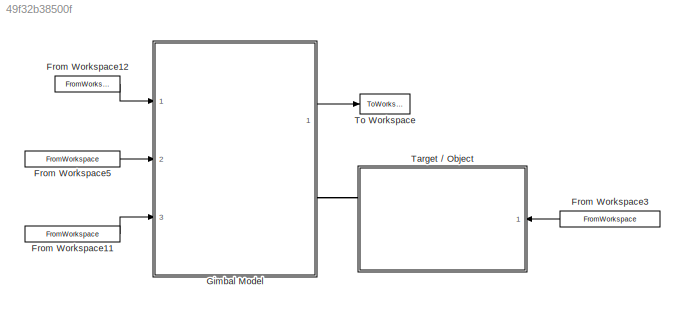
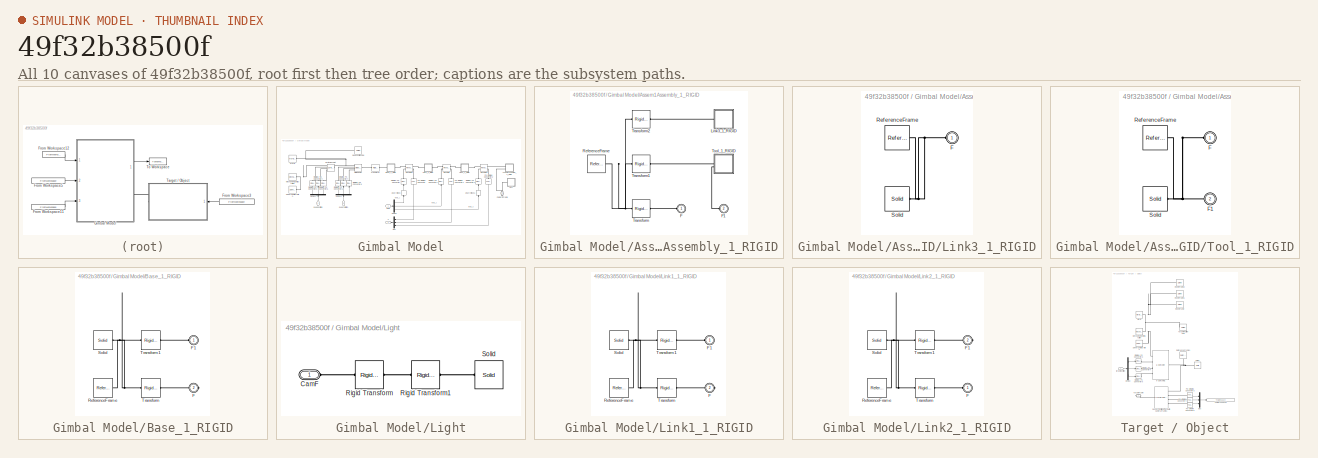
[diagram: thumbnail index - all 10 canvases of the model, root first then tree order]
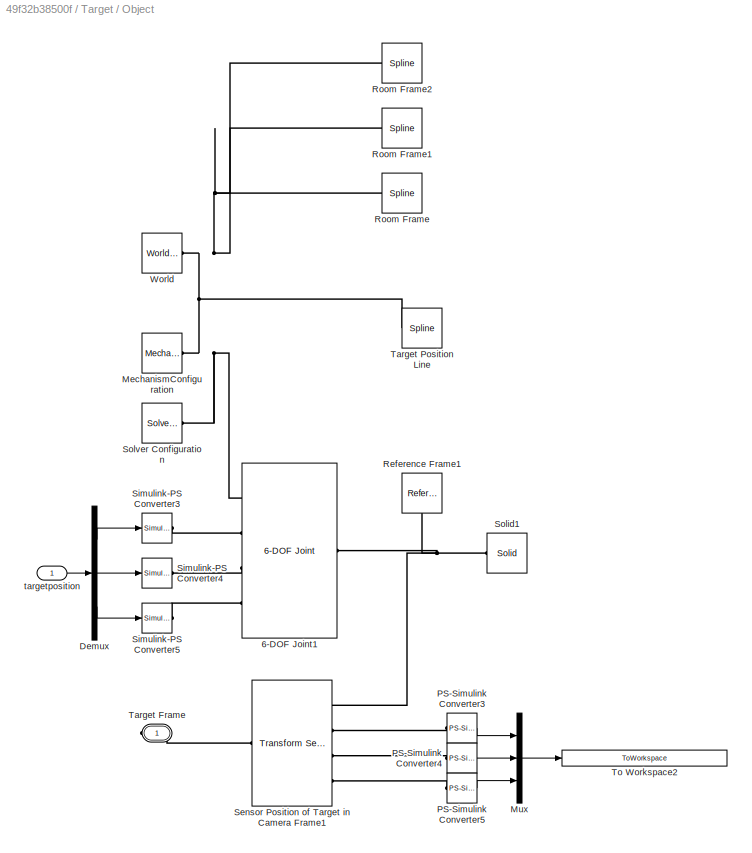
MODEL slx_49f32b38500f
KIND model
CONFIG AbsTol = auto
CONFIG EnableMultiTasking = off
CONFIG FixedStep = auto
CONFIG MaxStep = auto
CONFIG MinStep = auto
CONFIG RelTol = 1e-3
CONFIG SampleTimeConstraint = Unconstrained
CONFIG Solver = VariableStepAuto
CONFIG SolverName = VariableStepAuto
CONFIG StartTime = 0.0
CONFIG StopTime = 10.0
WORKSPACE source: external: MATLAB File  (data not in archive)
BLOCK [FromWorkspace] From Workspace11
  SampleTime = 0
  VariableName = input.quadrotation
  ZeroCross = on
BLOCK [FromWorkspace] From Workspace12
  SampleTime = 0
  VariableName = input.theta
  ZeroCross = on
BLOCK [FromWorkspace] From Workspace3
  SampleTime = 0
  VariableName = input.targetposition
  ZeroCross = on
BLOCK [FromWorkspace] From Workspace5
  SampleTime = 0
  VariableName = input.quadposition
  ZeroCross = on
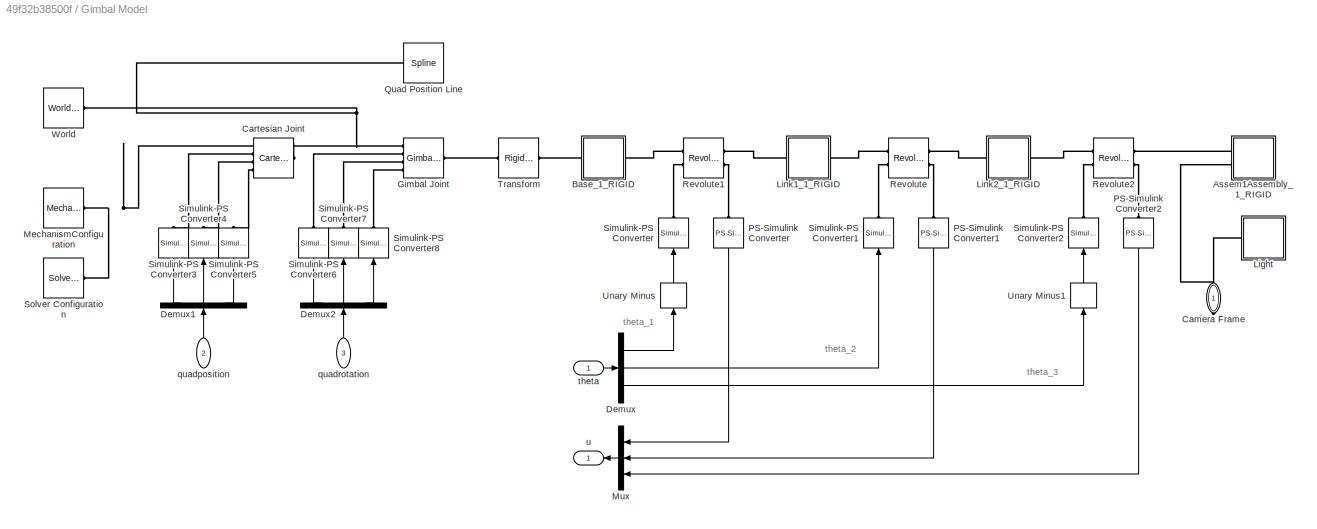
BLOCK [SubSystem] Gimbal Model
  Ports = [3, 1, 0, 0, 0, 0, 1]
  RequestExecContextInheritance = off
  Variant = off
BLOCK [SubSystem] Gimbal Model/Assem1Assembly_1_RIGID
  Ports = [0, 0, 0, 0, 0, 2]
  RequestExecContextInheritance = off
  Variant = off
BLOCK [PMIOPort] Gimbal Model/Assem1Assembly_1_RIGID/F
  Port = 1
  Side = Left
BLOCK [PMIOPort] Gimbal Model/Assem1Assembly_1_RIGID/F1
  Port = 2
  Side = Left
BLOCK [SubSystem] Gimbal Model/Assem1Assembly_1_RIGID/Link3_1_RIGID
  Ports = [0, 0, 0, 0, 0, 1]
  RequestExecContextInheritance = off
  Variant = off
BLOCK [PMIOPort] Gimbal Model/Assem1Assembly_1_RIGID/Link3_1_RIGID/F
  Port = 1
  Side = Left
BLOCK [Reference] Gimbal Model/Assem1Assembly_1_RIGID/Link3_1_RIGID/ReferenceFrame  REF=sm_lib/Frames and
Transforms/Reference
Frame
  Ports = [0, 0, 0, 0, 0, 0, 1]
  SourceBlock = sm_lib/Frames and\nTransforms/Reference\nFrame
  SourceProductBaseCode = MS
  SourceProductName = Simscape Multibody
  SourceType = Reference\nFrame
BLOCK [Reference] Gimbal Model/Assem1Assembly_1_RIGID/Link3_1_RIGID/Solid  REF=sm_lib/Body Elements/Solid
  Ports = [0, 0, 0, 0, 0, 0, 1]
  SourceBlock = sm_lib/Body Elements/Solid
  SourceProductBaseCode = MS
  SourceProductName = Simscape Multibody
  SourceType = Solid
BLOCK [Reference] Gimbal Model/Assem1Assembly_1_RIGID/ReferenceFrame  REF=sm_lib/Frames and
Transforms/Reference
Frame
  Ports = [0, 0, 0, 0, 0, 0, 1]
  SourceBlock = sm_lib/Frames and\nTransforms/Reference\nFrame
  SourceProductBaseCode = MS
  SourceProductName = Simscape Multibody
  SourceType = Reference\nFrame
BLOCK [SubSystem] Gimbal Model/Assem1Assembly_1_RIGID/Tool_1_RIGID
  Ports = [0, 0, 0, 0, 0, 2]
  RequestExecContextInheritance = off
  Variant = off
BLOCK [PMIOPort] Gimbal Model/Assem1Assembly_1_RIGID/Tool_1_RIGID/F
  Port = 1
  Side = Left
BLOCK [PMIOPort] Gimbal Model/Assem1Assembly_1_RIGID/Tool_1_RIGID/F1
  Port = 2
  Side = Left
BLOCK [Reference] Gimbal Model/Assem1Assembly_1_RIGID/Tool_1_RIGID/ReferenceFrame  REF=sm_lib/Frames and
Transforms/Reference
Frame
  Ports = [0, 0, 0, 0, 0, 0, 1]
  SourceBlock = sm_lib/Frames and\nTransforms/Reference\nFrame
  SourceProductBaseCode = MS
  SourceProductName = Simscape Multibody
  SourceType = Reference\nFrame
BLOCK [Reference] Gimbal Model/Assem1Assembly_1_RIGID/Tool_1_RIGID/Solid  REF=sm_lib/Body Elements/Solid
  Ports = [0, 0, 0, 0, 0, 0, 1]
  SourceBlock = sm_lib/Body Elements/Solid
  SourceProductBaseCode = MS
  SourceProductName = Simscape Multibody
  SourceType = Solid
BLOCK [Reference] Gimbal Model/Assem1Assembly_1_RIGID/Transform  REF=sm_lib/Frames and
Transforms/Rigid
Transform
  Ports = [0, 0, 0, 0, 0, 1, 1]
  SourceBlock = sm_lib/Frames and\nTransforms/Rigid\nTransform
  SourceProductBaseCode = MS
  SourceProductName = Simscape Multibody
  SourceType = Rigid\nTransform
BLOCK [Reference] Gimbal Model/Assem1Assembly_1_RIGID/Transform1  REF=sm_lib/Frames and
Transforms/Rigid
Transform
  Ports = [0, 0, 0, 0, 0, 1, 1]
  SourceBlock = sm_lib/Frames and\nTransforms/Rigid\nTransform
  SourceProductBaseCode = MS
  SourceProductName = Simscape Multibody
  SourceType = Rigid\nTransform
BLOCK [Reference] Gimbal Model/Assem1Assembly_1_RIGID/Transform2  REF=sm_lib/Frames and
Transforms/Rigid
Transform
  Ports = [0, 0, 0, 0, 0, 1, 1]
  SourceBlock = sm_lib/Frames and\nTransforms/Rigid\nTransform
  SourceProductBaseCode = MS
  SourceProductName = Simscape Multibody
  SourceType = Rigid\nTransform
BLOCK [SubSystem] Gimbal Model/Base_1_RIGID
  Ports = [0, 0, 0, 0, 0, 1, 1]
  RequestExecContextInheritance = off
  Variant = off
BLOCK [PMIOPort] Gimbal Model/Base_1_RIGID/F
  Port = 2
  Side = Right
BLOCK [PMIOPort] Gimbal Model/Base_1_RIGID/F1
  Port = 1
  Side = Left
BLOCK [Reference] Gimbal Model/Base_1_RIGID/ReferenceFrame  REF=sm_lib/Frames and
Transforms/Reference
Frame
  Ports = [0, 0, 0, 0, 0, 0, 1]
  SourceBlock = sm_lib/Frames and\nTransforms/Reference\nFrame
  SourceProductBaseCode = MS
  SourceProductName = Simscape Multibody
  SourceType = Reference\nFrame
BLOCK [Reference] Gimbal Model/Base_1_RIGID/Solid  REF=sm_lib/Body Elements/Solid
  Ports = [0, 0, 0, 0, 0, 0, 1]
  SourceBlock = sm_lib/Body Elements/Solid
  SourceProductBaseCode = MS
  SourceProductName = Simscape Multibody
  SourceType = Solid
BLOCK [Reference] Gimbal Model/Base_1_RIGID/Transform  REF=sm_lib/Frames and
Transforms/Rigid
Transform
  Ports = [0, 0, 0, 0, 0, 1, 1]
  SourceBlock = sm_lib/Frames and\nTransforms/Rigid\nTransform
  SourceProductBaseCode = MS
  SourceProductName = Simscape Multibody
  SourceType = Rigid\nTransform
BLOCK [Reference] Gimbal Model/Base_1_RIGID/Transform1  REF=sm_lib/Frames and
Transforms/Rigid
Transform
  Ports = [0, 0, 0, 0, 0, 1, 1]
  SourceBlock = sm_lib/Frames and\nTransforms/Rigid\nTransform
  SourceProductBaseCode = MS
  SourceProductName = Simscape Multibody
  SourceType = Rigid\nTransform
BLOCK [PMIOPort] Gimbal Model/Camera Frame
  Port = 1
  Side = Right
BLOCK [Reference] Gimbal Model/Cartesian Joint  REF=sm_lib/Joints/Cartesian
Joint
  Ports = [0, 0, 0, 0, 0, 4, 1]
  SourceBlock = sm_lib/Joints/Cartesian\nJoint
  SourceProductBaseCode = MS
  SourceProductName = Simscape Multibody
  SourceType = Cartesian\nJoint
BLOCK [Demux] Gimbal Model/Demux
  DisplayOption = bar
  Outputs = 3
  Ports = [1, 3]
BLOCK [Demux] Gimbal Model/Demux1
  DisplayOption = bar
  Outputs = 3
  Ports = [1, 3]
BLOCK [Demux] Gimbal Model/Demux2
  DisplayOption = bar
  Outputs = 3
  Ports = [1, 3]
BLOCK [Reference] Gimbal Model/Gimbal Joint  REF=sm_lib/Joints/Gimbal Joint
  Ports = [0, 0, 0, 0, 0, 4, 1]
  SourceBlock = sm_lib/Joints/Gimbal Joint
  SourceProductBaseCode = MS
  SourceProductName = Simscape Multibody
  SourceType = Gimbal Joint
BLOCK [SubSystem] Gimbal Model/Light
  Ports = [0, 0, 0, 0, 0, 1]
  RequestExecContextInheritance = off
  Variant = off
BLOCK [PMIOPort] Gimbal Model/Light/CamF
  Port = 1
  Side = Left
BLOCK [Reference] Gimbal Model/Light/Rigid Transform  REF=sm_lib/Frames and
Transforms/Rigid
Transform
  Ports = [0, 0, 0, 0, 0, 1, 1]
  SourceBlock = sm_lib/Frames and\nTransforms/Rigid\nTransform
  SourceProductBaseCode = MS
  SourceProductName = Simscape Multibody
  SourceType = Rigid\nTransform
BLOCK [Reference] Gimbal Model/Light/Rigid Transform1  REF=sm_lib/Frames and
Transforms/Rigid
Transform
  Ports = [0, 0, 0, 0, 0, 1, 1]
  SourceBlock = sm_lib/Frames and\nTransforms/Rigid\nTransform
  SourceProductBaseCode = MS
  SourceProductName = Simscape Multibody
  SourceType = Rigid\nTransform
BLOCK [Reference] Gimbal Model/Light/Solid  REF=sm_lib/Body Elements/Solid
  Ports = [0, 0, 0, 0, 0, 0, 1]
  SourceBlock = sm_lib/Body Elements/Solid
  SourceProductBaseCode = MS
  SourceProductName = Simscape Multibody
  SourceType = Solid
BLOCK [SubSystem] Gimbal Model/Link1_1_RIGID
  Ports = [0, 0, 0, 0, 0, 1, 1]
  RequestExecContextInheritance = off
  Variant = off
BLOCK [PMIOPort] Gimbal Model/Link1_1_RIGID/F
  Port = 2
  Side = Right
BLOCK [PMIOPort] Gimbal Model/Link1_1_RIGID/F1
  Port = 1
  Side = Left
BLOCK [Reference] Gimbal Model/Link1_1_RIGID/ReferenceFrame  REF=sm_lib/Frames and
Transforms/Reference
Frame
  Ports = [0, 0, 0, 0, 0, 0, 1]
  SourceBlock = sm_lib/Frames and\nTransforms/Reference\nFrame
  SourceProductBaseCode = MS
  SourceProductName = Simscape Multibody
  SourceType = Reference\nFrame
BLOCK [Reference] Gimbal Model/Link1_1_RIGID/Solid  REF=sm_lib/Body Elements/Solid
  Ports = [0, 0, 0, 0, 0, 0, 1]
  SourceBlock = sm_lib/Body Elements/Solid
  SourceProductBaseCode = MS
  SourceProductName = Simscape Multibody
  SourceType = Solid
BLOCK [Reference] Gimbal Model/Link1_1_RIGID/Transform  REF=sm_lib/Frames and
Transforms/Rigid
Transform
  Ports = [0, 0, 0, 0, 0, 1, 1]
  SourceBlock = sm_lib/Frames and\nTransforms/Rigid\nTransform
  SourceProductBaseCode = MS
  SourceProductName = Simscape Multibody
  SourceType = Rigid\nTransform
BLOCK [Reference] Gimbal Model/Link1_1_RIGID/Transform1  REF=sm_lib/Frames and
Transforms/Rigid
Transform
  Ports = [0, 0, 0, 0, 0, 1, 1]
  SourceBlock = sm_lib/Frames and\nTransforms/Rigid\nTransform
  SourceProductBaseCode = MS
  SourceProductName = Simscape Multibody
  SourceType = Rigid\nTransform
BLOCK [SubSystem] Gimbal Model/Link2_1_RIGID
  Ports = [0, 0, 0, 0, 0, 1, 1]
  RequestExecContextInheritance = off
  Variant = off
BLOCK [PMIOPort] Gimbal Model/Link2_1_RIGID/F
  Port = 1
  Side = Left
BLOCK [PMIOPort] Gimbal Model/Link2_1_RIGID/F1
  Port = 2
  Side = Right
BLOCK [Reference] Gimbal Model/Link2_1_RIGID/ReferenceFrame  REF=sm_lib/Frames and
Transforms/Reference
Frame
  Ports = [0, 0, 0, 0, 0, 0, 1]
  SourceBlock = sm_lib/Frames and\nTransforms/Reference\nFrame
  SourceProductBaseCode = MS
  SourceProductName = Simscape Multibody
  SourceType = Reference\nFrame
BLOCK [Reference] Gimbal Model/Link2_1_RIGID/Solid  REF=sm_lib/Body Elements/Solid
  Ports = [0, 0, 0, 0, 0, 0, 1]
  SourceBlock = sm_lib/Body Elements/Solid
  SourceProductBaseCode = MS
  SourceProductName = Simscape Multibody
  SourceType = Solid
BLOCK [Reference] Gimbal Model/Link2_1_RIGID/Transform  REF=sm_lib/Frames and
Transforms/Rigid
Transform
  Ports = [0, 0, 0, 0, 0, 1, 1]
  SourceBlock = sm_lib/Frames and\nTransforms/Rigid\nTransform
  SourceProductBaseCode = MS
  SourceProductName = Simscape Multibody
  SourceType = Rigid\nTransform
BLOCK [Reference] Gimbal Model/Link2_1_RIGID/Transform1  REF=sm_lib/Frames and
Transforms/Rigid
Transform
  Ports = [0, 0, 0, 0, 0, 1, 1]
  SourceBlock = sm_lib/Frames and\nTransforms/Rigid\nTransform
  SourceProductBaseCode = MS
  SourceProductName = Simscape Multibody
  SourceType = Rigid\nTransform
BLOCK [Reference] Gimbal Model/MechanismConfiguration  REF=sm_lib/Utilities/Mechanism
Configuration
  Ports = [0, 0, 0, 0, 0, 0, 1]
  SourceBlock = sm_lib/Utilities/Mechanism\nConfiguration
  SourceProductBaseCode = MS
  SourceProductName = Simscape Multibody
  SourceType = Mechanism\nConfiguration
BLOCK [Mux] Gimbal Model/Mux
  DisplayOption = bar
  Inputs = 3
  Ports = [3, 1]
BLOCK [Reference] Gimbal Model/PS-Simulink Converter  REF=nesl_utility/PS-Simulink
Converter
  Ports = [0, 1, 0, 0, 0, 1]
  SourceBlock = nesl_utility/PS-Simulink\nConverter
  SourceProductBaseCode = SS
  SourceProductName = Simscape
  SourceType = PS-Simulink\nConverter
BLOCK [Reference] Gimbal Model/PS-Simulink Converter1  REF=nesl_utility/PS-Simulink
Converter
  Ports = [0, 1, 0, 0, 0, 1]
  SourceBlock = nesl_utility/PS-Simulink\nConverter
  SourceProductBaseCode = SS
  SourceProductName = Simscape
  SourceType = PS-Simulink\nConverter
BLOCK [Reference] Gimbal Model/PS-Simulink Converter2  REF=nesl_utility/PS-Simulink
Converter
  Ports = [0, 1, 0, 0, 0, 1]
  SourceBlock = nesl_utility/PS-Simulink\nConverter
  SourceProductBaseCode = SS
  SourceProductName = Simscape
  SourceType = PS-Simulink\nConverter
BLOCK [Reference] Gimbal Model/Quad Position Line  REF=sm_lib/Curves and Surfaces/Spline
  Ports = [0, 0, 0, 0, 0, 1, 1]
  SourceBlock = sm_lib/Curves and Surfaces/Spline
  SourceProductBaseCode = MS
  SourceProductName = Simscape Multibody
  SourceType = Spline
BLOCK [Reference] Gimbal Model/Revolute  REF=sm_lib/Joints/Revolute Joint
  Ports = [0, 0, 0, 0, 0, 2, 2]
  SourceBlock = sm_lib/Joints/Revolute Joint
  SourceProductBaseCode = MS
  SourceProductName = Simscape Multibody
  SourceType = Revolute Joint
BLOCK [Reference] Gimbal Model/Revolute1  REF=sm_lib/Joints/Revolute Joint
  Ports = [0, 0, 0, 0, 0, 2, 2]
  SourceBlock = sm_lib/Joints/Revolute Joint
  SourceProductBaseCode = MS
  SourceProductName = Simscape Multibody
  SourceType = Revolute Joint
BLOCK [Reference] Gimbal Model/Revolute2  REF=sm_lib/Joints/Revolute Joint
  Ports = [0, 0, 0, 0, 0, 2, 2]
  SourceBlock = sm_lib/Joints/Revolute Joint
  SourceProductBaseCode = MS
  SourceProductName = Simscape Multibody
  SourceType = Revolute Joint
BLOCK [Reference] Gimbal Model/Simulink-PS Converter  REF=nesl_utility/Simulink-PS
Converter
  Ports = [1, 0, 0, 0, 0, 0, 1]
  SourceBlock = nesl_utility/Simulink-PS\nConverter
  SourceProductBaseCode = SS
  SourceProductName = Simscape
  SourceType = Simulink-PS\nConverter
BLOCK [Reference] Gimbal Model/Simulink-PS Converter1  REF=nesl_utility/Simulink-PS
Converter
  Ports = [1, 0, 0, 0, 0, 0, 1]
  SourceBlock = nesl_utility/Simulink-PS\nConverter
  SourceProductBaseCode = SS
  SourceProductName = Simscape
  SourceType = Simulink-PS\nConverter
BLOCK [Reference] Gimbal Model/Simulink-PS Converter2  REF=nesl_utility/Simulink-PS
Converter
  Ports = [1, 0, 0, 0, 0, 0, 1]
  SourceBlock = nesl_utility/Simulink-PS\nConverter
  SourceProductBaseCode = SS
  SourceProductName = Simscape
  SourceType = Simulink-PS\nConverter
BLOCK [Reference] Gimbal Model/Simulink-PS Converter3  REF=nesl_utility/Simulink-PS
Converter
  Ports = [1, 0, 0, 0, 0, 0, 1]
  SourceBlock = nesl_utility/Simulink-PS\nConverter
  SourceProductBaseCode = SS
  SourceProductName = Simscape
  SourceType = Simulink-PS\nConverter
BLOCK [Reference] Gimbal Model/Simulink-PS Converter4  REF=nesl_utility/Simulink-PS
Converter
  Ports = [1, 0, 0, 0, 0, 0, 1]
  SourceBlock = nesl_utility/Simulink-PS\nConverter
  SourceProductBaseCode = SS
  SourceProductName = Simscape
  SourceType = Simulink-PS\nConverter
BLOCK [Reference] Gimbal Model/Simulink-PS Converter5  REF=nesl_utility/Simulink-PS
Converter
  Ports = [1, 0, 0, 0, 0, 0, 1]
  SourceBlock = nesl_utility/Simulink-PS\nConverter
  SourceProductBaseCode = SS
  SourceProductName = Simscape
  SourceType = Simulink-PS\nConverter
BLOCK [Reference] Gimbal Model/Simulink-PS Converter6  REF=nesl_utility/Simulink-PS
Converter
  Ports = [1, 0, 0, 0, 0, 0, 1]
  SourceBlock = nesl_utility/Simulink-PS\nConverter
  SourceProductBaseCode = SS
  SourceProductName = Simscape
  SourceType = Simulink-PS\nConverter
BLOCK [Reference] Gimbal Model/Simulink-PS Converter7  REF=nesl_utility/Simulink-PS
Converter
  Ports = [1, 0, 0, 0, 0, 0, 1]
  SourceBlock = nesl_utility/Simulink-PS\nConverter
  SourceProductBaseCode = SS
  SourceProductName = Simscape
  SourceType = Simulink-PS\nConverter
BLOCK [Reference] Gimbal Model/Simulink-PS Converter8  REF=nesl_utility/Simulink-PS
Converter
  Ports = [1, 0, 0, 0, 0, 0, 1]
  SourceBlock = nesl_utility/Simulink-PS\nConverter
  SourceProductBaseCode = SS
  SourceProductName = Simscape
  SourceType = Simulink-PS\nConverter
BLOCK [Reference] Gimbal Model/Solver Configuration  REF=nesl_utility/Solver
Configuration
  Ports = [0, 0, 0, 0, 0, 0, 1]
  SourceBlock = nesl_utility/Solver\nConfiguration
  SourceProductBaseCode = SS
  SourceProductName = Simscape
  SourceType = Solver\nConfiguration
BLOCK [Reference] Gimbal Model/Transform  REF=sm_lib/Frames and
Transforms/Rigid
Transform
  Ports = [0, 0, 0, 0, 0, 1, 1]
  SourceBlock = sm_lib/Frames and\nTransforms/Rigid\nTransform
  SourceProductBaseCode = MS
  SourceProductName = Simscape Multibody
  SourceType = Rigid\nTransform
BLOCK [UnaryMinus] Gimbal Model/Unary Minus
BLOCK [UnaryMinus] Gimbal Model/Unary Minus1
BLOCK [Reference] Gimbal Model/World  REF=sm_lib/Frames and
Transforms/World Frame
  Ports = [0, 0, 0, 0, 0, 0, 1]
  SourceBlock = sm_lib/Frames and\nTransforms/World Frame
  SourceProductBaseCode = MS
  SourceProductName = Simscape Multibody
  SourceType = World Frame
BLOCK [Inport] Gimbal Model/quadposition
  IconDisplay = Port number
  Port = 2
BLOCK [Inport] Gimbal Model/quadrotation
  IconDisplay = Port number
  Port = 3
BLOCK [Inport] Gimbal Model/theta
  IconDisplay = Port number
BLOCK [Outport] Gimbal Model/u
  IconDisplay = Port number
BLOCK [SubSystem] Target // Object
  Ports = [1, 0, 0, 0, 0, 0, 1]
  RequestExecContextInheritance = off
  Variant = off
BLOCK [Reference] Target // Object/6-DOF Joint1  REF=sm_lib/Joints/6-DOF Joint
  Ports = [0, 0, 0, 0, 0, 4, 1]
  SourceBlock = sm_lib/Joints/6-DOF Joint
  SourceProductBaseCode = MS
  SourceProductName = Simscape Multibody
  SourceType = 6-DOF Joint
BLOCK [Demux] Target // Object/Demux
  DisplayOption = bar
  Outputs = 3
  Ports = [1, 3]
BLOCK [Reference] Target // Object/MechanismConfiguration  REF=sm_lib/Utilities/Mechanism
Configuration
  Commented = on
  Ports = [0, 0, 0, 0, 0, 0, 1]
  SourceBlock = sm_lib/Utilities/Mechanism\nConfiguration
  SourceProductBaseCode = MS
  SourceProductName = Simscape Multibody
  SourceType = Mechanism\nConfiguration
BLOCK [Mux] Target // Object/Mux
  Commented = on
  DisplayOption = bar
  Inputs = 3
  Ports = [3, 1]
BLOCK [Reference] Target // Object/PS-Simulink Converter3  REF=nesl_utility/PS-Simulink
Converter
  Commented = on
  Ports = [0, 1, 0, 0, 0, 1]
  SourceBlock = nesl_utility/PS-Simulink\nConverter
  SourceProductBaseCode = SS
  SourceProductName = Simscape
  SourceType = PS-Simulink\nConverter
BLOCK [Reference] Target // Object/PS-Simulink Converter4  REF=nesl_utility/PS-Simulink
Converter
  Commented = on
  Ports = [0, 1, 0, 0, 0, 1]
  SourceBlock = nesl_utility/PS-Simulink\nConverter
  SourceProductBaseCode = SS
  SourceProductName = Simscape
  SourceType = PS-Simulink\nConverter
BLOCK [Reference] Target // Object/PS-Simulink Converter5  REF=nesl_utility/PS-Simulink
Converter
  Commented = on
  Ports = [0, 1, 0, 0, 0, 1]
  SourceBlock = nesl_utility/PS-Simulink\nConverter
  SourceProductBaseCode = SS
  SourceProductName = Simscape
  SourceType = PS-Simulink\nConverter
BLOCK [Reference] Target // Object/Reference Frame1  REF=sm_lib/Frames and
Transforms/Reference
Frame
  Ports = [0, 0, 0, 0, 0, 0, 1]
  SourceBlock = sm_lib/Frames and\nTransforms/Reference\nFrame
  SourceProductBaseCode = MS
  SourceProductName = Simscape Multibody
  SourceType = Reference\nFrame
BLOCK [Reference] Target // Object/Room Frame  REF=sm_lib/Curves and Surfaces/Spline
  Ports = [0, 0, 0, 0, 0, 1, 1]
  SourceBlock = sm_lib/Curves and Surfaces/Spline
  SourceProductBaseCode = MS
  SourceProductName = Simscape Multibody
  SourceType = Spline
BLOCK [Reference] Target // Object/Room Frame1  REF=sm_lib/Curves and Surfaces/Spline
  Ports = [0, 0, 0, 0, 0, 1, 1]
  SourceBlock = sm_lib/Curves and Surfaces/Spline
  SourceProductBaseCode = MS
  SourceProductName = Simscape Multibody
  SourceType = Spline
BLOCK [Reference] Target // Object/Room Frame2  REF=sm_lib/Curves and Surfaces/Spline
  Ports = [0, 0, 0, 0, 0, 1, 1]
  SourceBlock = sm_lib/Curves and Surfaces/Spline
  SourceProductBaseCode = MS
  SourceProductName = Simscape Multibody
  SourceType = Spline
BLOCK [Reference] Target // Object/Sensor Position of Target in Camera Frame1  REF=sm_lib/Frames and
Transforms/Transform
Sensor
  Ports = [0, 0, 0, 0, 0, 1, 4]
  SourceBlock = sm_lib/Frames and\nTransforms/Transform\nSensor
  SourceProductBaseCode = MS
  SourceProductName = Simscape Multibody
  SourceType = Transform\nSensor
BLOCK [Reference] Target // Object/Simulink-PS Converter3  REF=nesl_utility/Simulink-PS
Converter
  Ports = [1, 0, 0, 0, 0, 0, 1]
  SourceBlock = nesl_utility/Simulink-PS\nConverter
  SourceProductBaseCode = SS
  SourceProductName = Simscape
  SourceType = Simulink-PS\nConverter
BLOCK [Reference] Target // Object/Simulink-PS Converter4  REF=nesl_utility/Simulink-PS
Converter
  Ports = [1, 0, 0, 0, 0, 0, 1]
  SourceBlock = nesl_utility/Simulink-PS\nConverter
  SourceProductBaseCode = SS
  SourceProductName = Simscape
  SourceType = Simulink-PS\nConverter
BLOCK [Reference] Target // Object/Simulink-PS Converter5  REF=nesl_utility/Simulink-PS
Converter
  Ports = [1, 0, 0, 0, 0, 0, 1]
  SourceBlock = nesl_utility/Simulink-PS\nConverter
  SourceProductBaseCode = SS
  SourceProductName = Simscape
  SourceType = Simulink-PS\nConverter
BLOCK [Reference] Target // Object/Solid1  REF=sm_lib/Body Elements/Solid
  Ports = [0, 0, 0, 0, 0, 0, 1]
  SourceBlock = sm_lib/Body Elements/Solid
  SourceProductBaseCode = MS
  SourceProductName = Simscape Multibody
  SourceType = Solid
BLOCK [Reference] Target // Object/Solver Configuration  REF=nesl_utility/Solver
Configuration
  Commented = on
  Ports = [0, 0, 0, 0, 0, 0, 1]
  SourceBlock = nesl_utility/Solver\nConfiguration
  SourceProductBaseCode = SS
  SourceProductName = Simscape
  SourceType = Solver\nConfiguration
BLOCK [PMIOPort] Target // Object/Target Frame
  Port = 1
  Side = Right
  Tag = PMCPort
BLOCK [Reference] Target // Object/Target Position Line  REF=sm_lib/Curves and Surfaces/Spline
  Ports = [0, 0, 0, 0, 0, 1, 1]
  SourceBlock = sm_lib/Curves and Surfaces/Spline
  SourceProductBaseCode = MS
  SourceProductName = Simscape Multibody
  SourceType = Spline
BLOCK [ToWorkspace] Target // Object/To Workspace2
  Commented = on
  FixptAsFi = on
  MaxDataPoints = inf
  Ports = [1]
  SampleTime = -1
  Save2DSignal = 3-D array (concatenate along third dimension)
  SaveFormat = Timeseries
  VariableName = target_position_in_camera_frame
BLOCK [Reference] Target // Object/World  REF=sm_lib/Frames and
Transforms/World Frame
  Ports = [0, 0, 0, 0, 0, 0, 1]
  SourceBlock = sm_lib/Frames and\nTransforms/World Frame
  SourceProductBaseCode = MS
  SourceProductName = Simscape Multibody
  SourceType = World Frame
BLOCK [Inport] Target // Object/targetposition
  IconDisplay = Port number
BLOCK [ToWorkspace] To Workspace
  FixptAsFi = on
  MaxDataPoints = inf
  Ports = [1]
  SampleTime = -1
  Save2DSignal = 3-D array (concatenate along third dimension)
  SaveFormat = Timeseries
  VariableName = output_u
ANNOTATION Gimbal Model: theta_1
ANNOTATION Gimbal Model: theta_2
ANNOTATION Gimbal Model: theta_3
LINE From Workspace11:1 -> Gimbal Model:3
LINE From Workspace12:1 -> Gimbal Model:1
LINE From Workspace3:1 -> Target // Object:1
LINE From Workspace5:1 -> Gimbal Model:2
LINE Gimbal Model/Demux1:1 -> Gimbal Model/Simulink-PS Converter3:1
LINE Gimbal Model/Demux1:2 -> Gimbal Model/Simulink-PS Converter4:1
LINE Gimbal Model/Demux1:3 -> Gimbal Model/Simulink-PS Converter5:1
LINE Gimbal Model/Demux2:1 -> Gimbal Model/Simulink-PS Converter6:1
LINE Gimbal Model/Demux2:2 -> Gimbal Model/Simulink-PS Converter7:1
LINE Gimbal Model/Demux2:3 -> Gimbal Model/Simulink-PS Converter8:1
LINE Gimbal Model/Demux:1 -> Gimbal Model/Unary Minus:1
LINE Gimbal Model/Demux:2 -> Gimbal Model/Simulink-PS Converter1:1
LINE Gimbal Model/Demux:3 -> Gimbal Model/Unary Minus1:1
LINE Gimbal Model/Mux:1 -> Gimbal Model/u:1
LINE Gimbal Model/PS-Simulink Converter1:1 -> Gimbal Model/Mux:2
LINE Gimbal Model/PS-Simulink Converter2:1 -> Gimbal Model/Mux:3
LINE Gimbal Model/PS-Simulink Converter:1 -> Gimbal Model/Mux:1
LINE Gimbal Model/Unary Minus1:1 -> Gimbal Model/Simulink-PS Converter2:1
LINE Gimbal Model/Unary Minus:1 -> Gimbal Model/Simulink-PS Converter:1
LINE Gimbal Model/quadposition:1 -> Gimbal Model/Demux1:1
LINE Gimbal Model/quadrotation:1 -> Gimbal Model/Demux2:1
LINE Gimbal Model/theta:1 -> Gimbal Model/Demux:1
LINE Gimbal Model:1 -> To Workspace:1
LINE Target // Object/Demux:1 -> Target // Object/Simulink-PS Converter3:1
LINE Target // Object/Demux:2 -> Target // Object/Simulink-PS Converter4:1
LINE Target // Object/Demux:3 -> Target // Object/Simulink-PS Converter5:1
LINE Target // Object/Mux:1 -> Target // Object/To Workspace2:1
LINE Target // Object/PS-Simulink Converter3:1 -> Target // Object/Mux:1
LINE Target // Object/PS-Simulink Converter4:1 -> Target // Object/Mux:2
LINE Target // Object/PS-Simulink Converter5:1 -> Target // Object/Mux:3
LINE Target // Object/targetposition:1 -> Target // Object/Demux:1
PLINE Gimbal Model/Assem1Assembly_1_RIGID/F1:RConn1 -- Gimbal Model/Assem1Assembly_1_RIGID/Tool_1_RIGID:LConn2
PLINE Gimbal Model/Assem1Assembly_1_RIGID/F:RConn1 -- Gimbal Model/Assem1Assembly_1_RIGID/Transform:RConn1
PNET net1: Gimbal Model/Assem1Assembly_1_RIGID/Link3_1_RIGID/F:RConn1 -- Gimbal Model/Assem1Assembly_1_RIGID/Link3_1_RIGID/ReferenceFrame:RConn1 -- Gimbal Model/Assem1Assembly_1_RIGID/Link3_1_RIGID/Solid:RConn1
PLINE Gimbal Model/Assem1Assembly_1_RIGID/Link3_1_RIGID:LConn1 -- Gimbal Model/Assem1Assembly_1_RIGID/Transform2:RConn1
PNET net2: Gimbal Model/Assem1Assembly_1_RIGID/ReferenceFrame:RConn1 -- Gimbal Model/Assem1Assembly_1_RIGID/Transform1:LConn1 -- Gimbal Model/Assem1Assembly_1_RIGID/Transform2:LConn1 -- Gimbal Model/Assem1Assembly_1_RIGID/Transform:LConn1
PNET net3: Gimbal Model/Assem1Assembly_1_RIGID/Tool_1_RIGID/F1:RConn1 -- Gimbal Model/Assem1Assembly_1_RIGID/Tool_1_RIGID/F:RConn1 -- Gimbal Model/Assem1Assembly_1_RIGID/Tool_1_RIGID/ReferenceFrame:RConn1 -- Gimbal Model/Assem1Assembly_1_RIGID/Tool_1_RIGID/Solid:RConn1
PLINE Gimbal Model/Assem1Assembly_1_RIGID/Tool_1_RIGID:LConn1 -- Gimbal Model/Assem1Assembly_1_RIGID/Transform1:RConn1
PLINE Gimbal Model/Assem1Assembly_1_RIGID:LConn1 -- Gimbal Model/Revolute2:RConn1
PNET net4: Gimbal Model/Assem1Assembly_1_RIGID:LConn2 -- Gimbal Model/Camera Frame:RConn1 -- Gimbal Model/Light:LConn1
PLINE Gimbal Model/Base_1_RIGID/F1:RConn1 -- Gimbal Model/Base_1_RIGID/Transform1:RConn1
PLINE Gimbal Model/Base_1_RIGID/F:RConn1 -- Gimbal Model/Base_1_RIGID/Transform:RConn1
PNET net5: Gimbal Model/Base_1_RIGID/ReferenceFrame:RConn1 -- Gimbal Model/Base_1_RIGID/Solid:RConn1 -- Gimbal Model/Base_1_RIGID/Transform1:LConn1 -- Gimbal Model/Base_1_RIGID/Transform:LConn1
PLINE Gimbal Model/Base_1_RIGID:LConn1 -- Gimbal Model/Transform:RConn1
PLINE Gimbal Model/Base_1_RIGID:RConn1 -- Gimbal Model/Revolute1:LConn1
PNET net6: Gimbal Model/Cartesian Joint:LConn1 -- Gimbal Model/MechanismConfiguration:RConn1 -- Gimbal Model/Quad Position Line:LConn1 -- Gimbal Model/Solver Configuration:RConn1 -- Gimbal Model/World:RConn1
PLINE Gimbal Model/Cartesian Joint:LConn2 -- Gimbal Model/Simulink-PS Converter3:RConn1
PLINE Gimbal Model/Cartesian Joint:LConn3 -- Gimbal Model/Simulink-PS Converter4:RConn1
PLINE Gimbal Model/Cartesian Joint:LConn4 -- Gimbal Model/Simulink-PS Converter5:RConn1
PLINE Gimbal Model/Cartesian Joint:RConn1 -- Gimbal Model/Gimbal Joint:LConn1
PLINE Gimbal Model/Gimbal Joint:LConn2 -- Gimbal Model/Simulink-PS Converter6:RConn1
PLINE Gimbal Model/Gimbal Joint:LConn3 -- Gimbal Model/Simulink-PS Converter7:RConn1
PLINE Gimbal Model/Gimbal Joint:LConn4 -- Gimbal Model/Simulink-PS Converter8:RConn1
PLINE Gimbal Model/Gimbal Joint:RConn1 -- Gimbal Model/Transform:LConn1
PLINE Gimbal Model/Light/CamF:RConn1 -- Gimbal Model/Light/Rigid Transform:LConn1
PLINE Gimbal Model/Light/Rigid Transform1:LConn1 -- Gimbal Model/Light/Rigid Transform:RConn1
PLINE Gimbal Model/Light/Rigid Transform1:RConn1 -- Gimbal Model/Light/Solid:RConn1
PLINE Gimbal Model/Link1_1_RIGID/F1:RConn1 -- Gimbal Model/Link1_1_RIGID/Transform1:RConn1
PLINE Gimbal Model/Link1_1_RIGID/F:RConn1 -- Gimbal Model/Link1_1_RIGID/Transform:RConn1
PNET net7: Gimbal Model/Link1_1_RIGID/ReferenceFrame:RConn1 -- Gimbal Model/Link1_1_RIGID/Solid:RConn1 -- Gimbal Model/Link1_1_RIGID/Transform1:LConn1 -- Gimbal Model/Link1_1_RIGID/Transform:LConn1
PLINE Gimbal Model/Link1_1_RIGID:LConn1 -- Gimbal Model/Revolute1:RConn1
PLINE Gimbal Model/Link1_1_RIGID:RConn1 -- Gimbal Model/Revolute:LConn1
PLINE Gimbal Model/Link2_1_RIGID/F1:RConn1 -- Gimbal Model/Link2_1_RIGID/Transform1:RConn1
PLINE Gimbal Model/Link2_1_RIGID/F:RConn1 -- Gimbal Model/Link2_1_RIGID/Transform:RConn1
PNET net8: Gimbal Model/Link2_1_RIGID/ReferenceFrame:RConn1 -- Gimbal Model/Link2_1_RIGID/Solid:RConn1 -- Gimbal Model/Link2_1_RIGID/Transform1:LConn1 -- Gimbal Model/Link2_1_RIGID/Transform:LConn1
PLINE Gimbal Model/Link2_1_RIGID:LConn1 -- Gimbal Model/Revolute:RConn1
PLINE Gimbal Model/Link2_1_RIGID:RConn1 -- Gimbal Model/Revolute2:LConn1
PLINE Gimbal Model/PS-Simulink Converter1:LConn1 -- Gimbal Model/Revolute:RConn2
PLINE Gimbal Model/PS-Simulink Converter2:LConn1 -- Gimbal Model/Revolute2:RConn2
PLINE Gimbal Model/PS-Simulink Converter:LConn1 -- Gimbal Model/Revolute1:RConn2
PLINE Gimbal Model/Revolute1:LConn2 -- Gimbal Model/Simulink-PS Converter:RConn1
PLINE Gimbal Model/Revolute2:LConn2 -- Gimbal Model/Simulink-PS Converter2:RConn1
PLINE Gimbal Model/Revolute:LConn2 -- Gimbal Model/Simulink-PS Converter1:RConn1
PLINE Gimbal Model:RConn1 -- Target // Object:RConn1
PNET net9: Target // Object/6-DOF Joint1:LConn1 -- Target // Object/MechanismConfiguration:RConn1 -- Target // Object/Room Frame1:LConn1 -- Target // Object/Room Frame2:LConn1 -- Target // Object/Room Frame:LConn1 -- Target // Object/Solver Configuration:RConn1 -- Target // Object/Target Position Line:LConn1 -- Target // Object/World:RConn1
PLINE Target // Object/6-DOF Joint1:LConn2 -- Target // Object/Simulink-PS Converter3:RConn1
PLINE Target // Object/6-DOF Joint1:LConn3 -- Target // Object/Simulink-PS Converter4:RConn1
PLINE Target // Object/6-DOF Joint1:LConn4 -- Target // Object/Simulink-PS Converter5:RConn1
PNET net10: Target // Object/6-DOF Joint1:RConn1 -- Target // Object/Reference Frame1:RConn1 -- Target // Object/Sensor Position of Target in Camera Frame1:RConn1 -- Target // Object/Solid1:RConn1
PLINE Target // Object/PS-Simulink Converter3:LConn1 -- Target // Object/Sensor Position of Target in Camera Frame1:RConn2
PLINE Target // Object/PS-Simulink Converter4:LConn1 -- Target // Object/Sensor Position of Target in Camera Frame1:RConn3
PLINE Target // Object/PS-Simulink Converter5:LConn1 -- Target // Object/Sensor Position of Target in Camera Frame1:RConn4
PLINE Target // Object/Sensor Position of Target in Camera Frame1:LConn1 -- Target // Object/Target Frame:RConn1
note: PNET lines group multi-terminal physical nets as a canonical sorted terminal list (undirected conserving connections); 2-terminal nets keep the pairwise PLINE form
